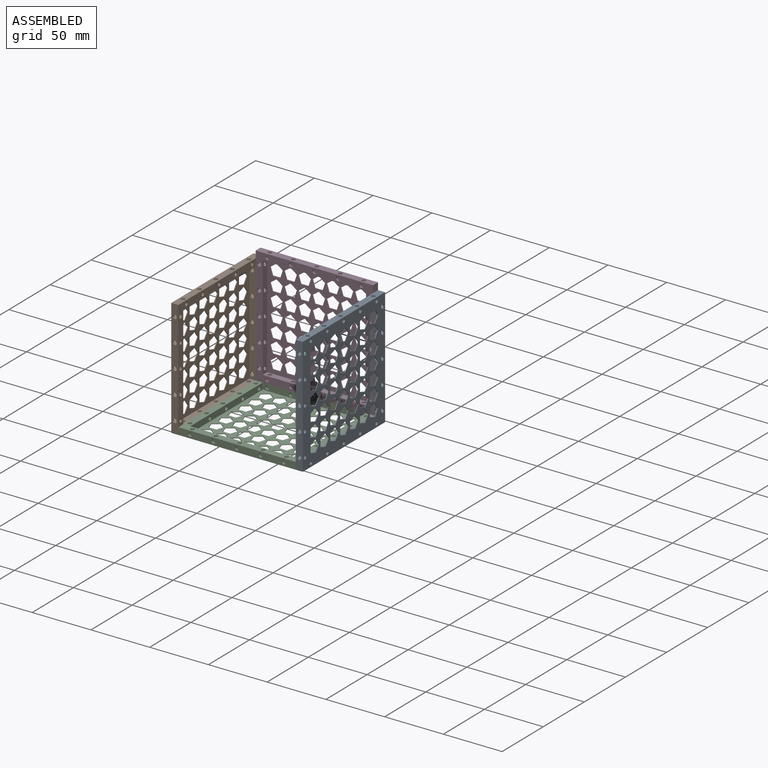
[diagram: assembled view]
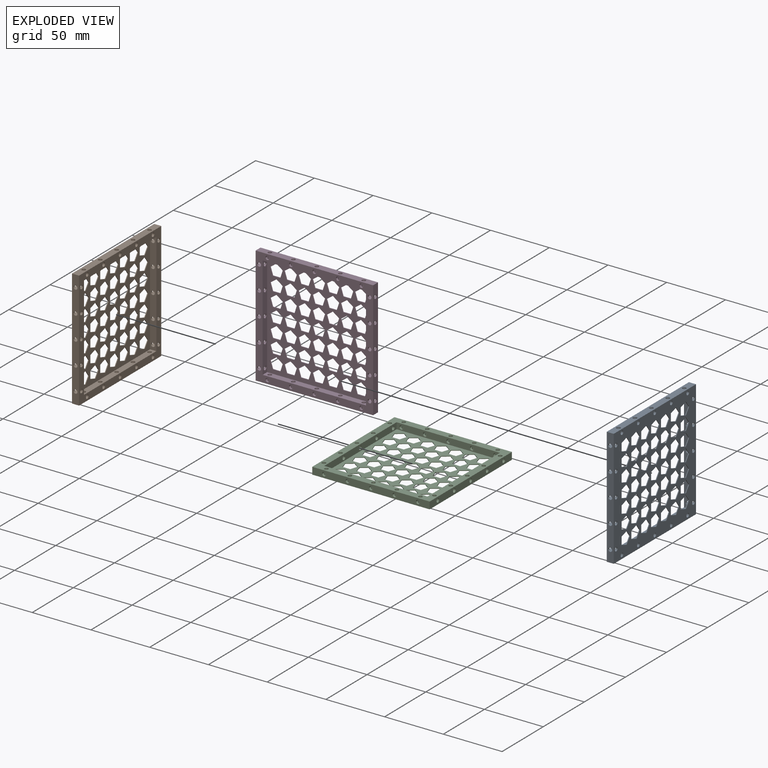
[diagram: exploded view]
GUIDED TOUR — MATED ASSEMBLY (Onshape document 7ba6213f974db87260cc7ae6, AutoMate assembly 7ba6213f974db87260cc7ae6_96b7c38a529a54918aa00f16_e0579a157c6d492ff08cebb7_default)

This assembly has 4 components, labeled P0..P3 below (a component is one placed occurrence of a part; the same part can appear more than once), held together by 3 mates. A mate is a constraint between two components; its type names the relative motion it leaves free:
  FASTENED — locks the two components together rigidly (no relative motion).
Axis/direction vectors are unit vectors and 'through' points are millimeter coordinates, both in the assembly's world frame.

MATES
  1. FASTENED "Fastened 3": P2 <-> P3, direction (0.000, 0.000, -1.000) through (-31.14, 40.50, 45.77) mm
  2. FASTENED "Fastened 2": P2 <-> P1, direction (-1.000, 0.000, 0.000) through (-81.14, 33.50, 42.77) mm
  3. FASTENED "Fastened 1": P2 <-> P0, direction (1.000, 0.000, 0.000) through (18.86, -46.50, 42.77) mm

ASSEMBLY ORDER
  1. P3 — the base component [order verified]
  2. P2 [order verified]
  3. P0 [order verified]
  4. P1 [order verified]
Order-tag legend:
  [order verified] — this step's position reverses a verified removal order: the component was checked to insert without passing through the ones already placed.

Of the 4 components, 4 carry the full construction recipe — the FeatureScript program that regenerates the part's solid from scratch; the rest are supplied as boundary geometry only.
Each toured component is shown spotlighted twice — in the assembled view, then in the exploded view, where a leader line traces a displaced component back to its assembled socket (saturated green if recipe-attached, orange if geometry-only; every other component desaturated gray) — followed by its recipe or geometry summary and the mates that hold it.
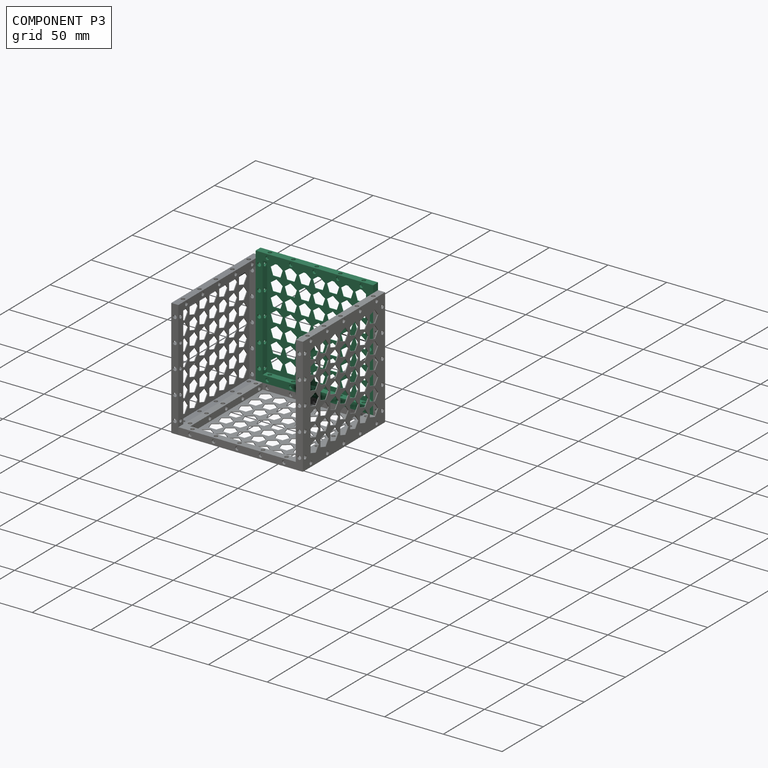
[diagram: component P3 — assembled]
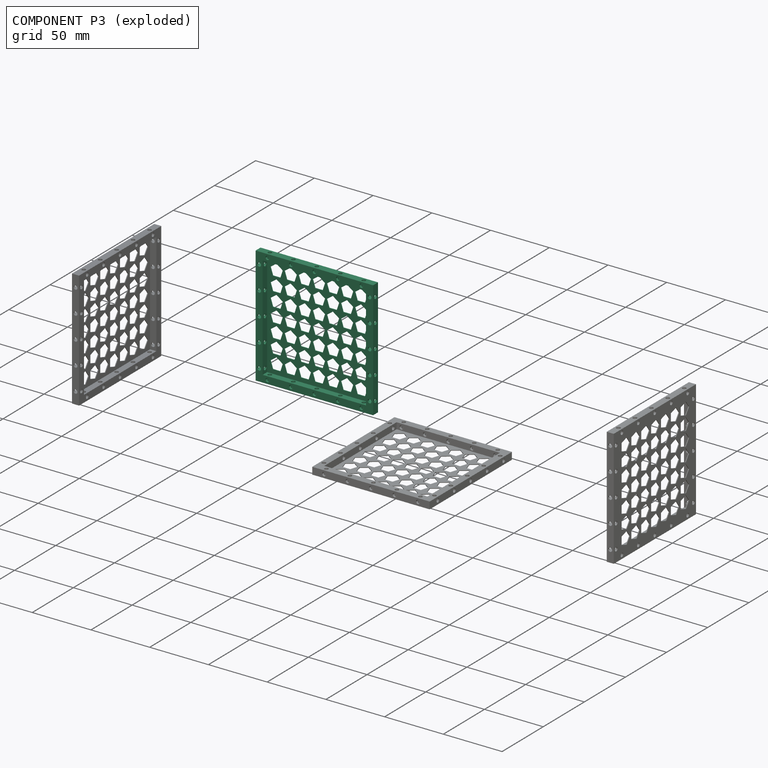
[diagram: component P3 — exploded]
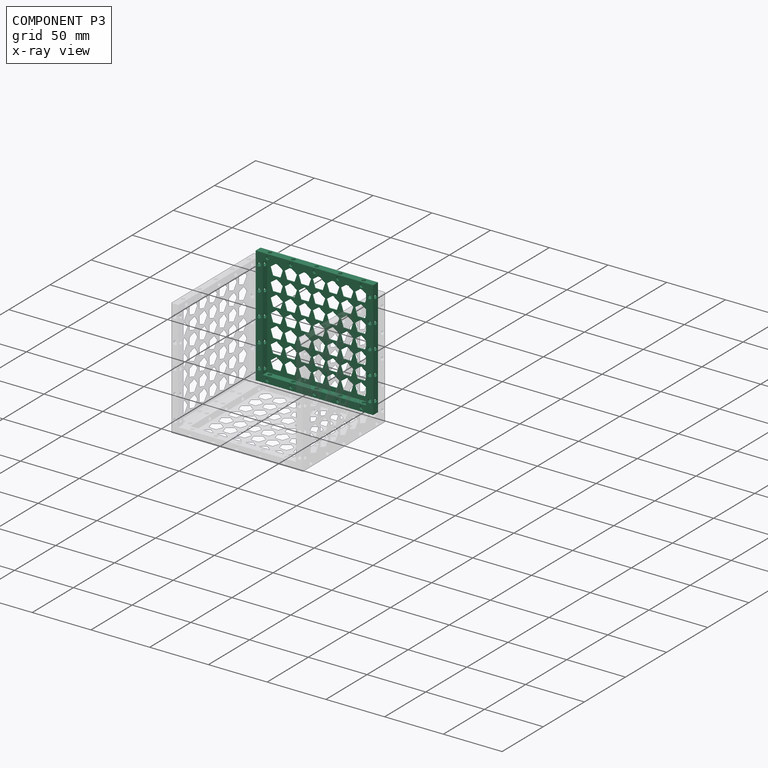
[diagram: component P3 — x-ray view]
COMPONENT P3 — same part as P0 (CADFS 00956520); its construction recipe is shown at P0.
Held by: FASTENED mate "Fastened 3" to P2.
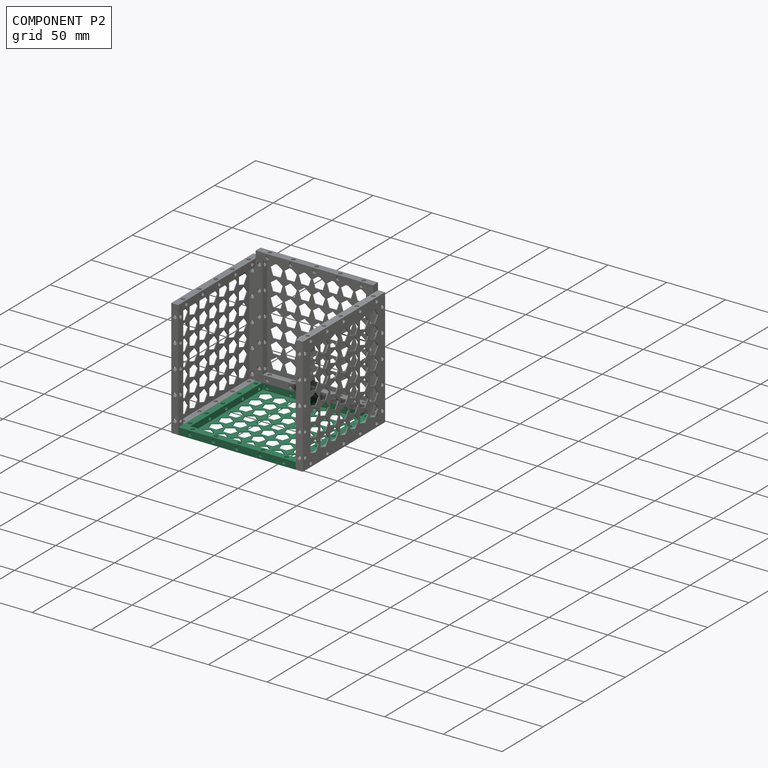
[diagram: component P2 — assembled]
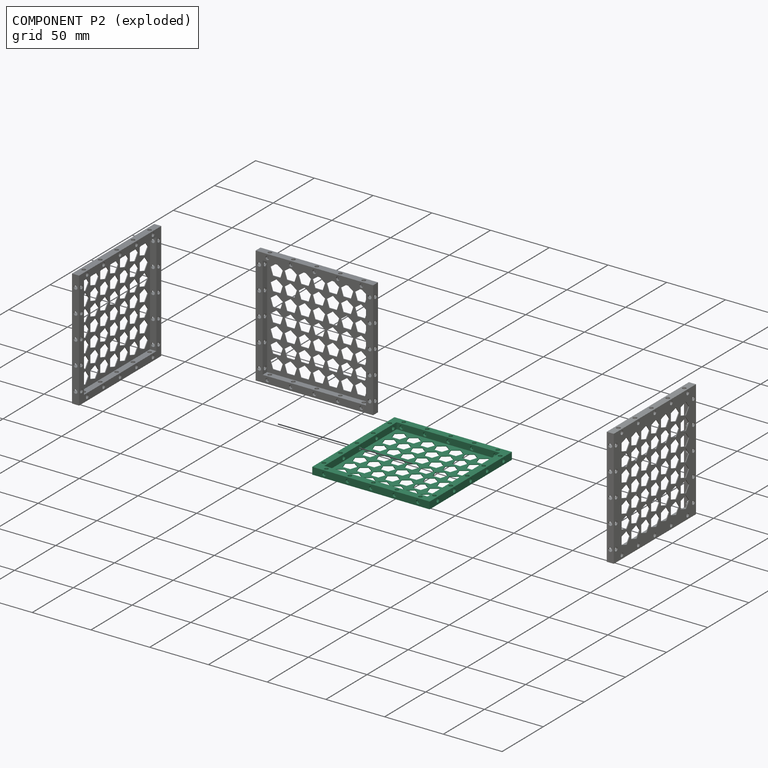
[diagram: component P2 — exploded]
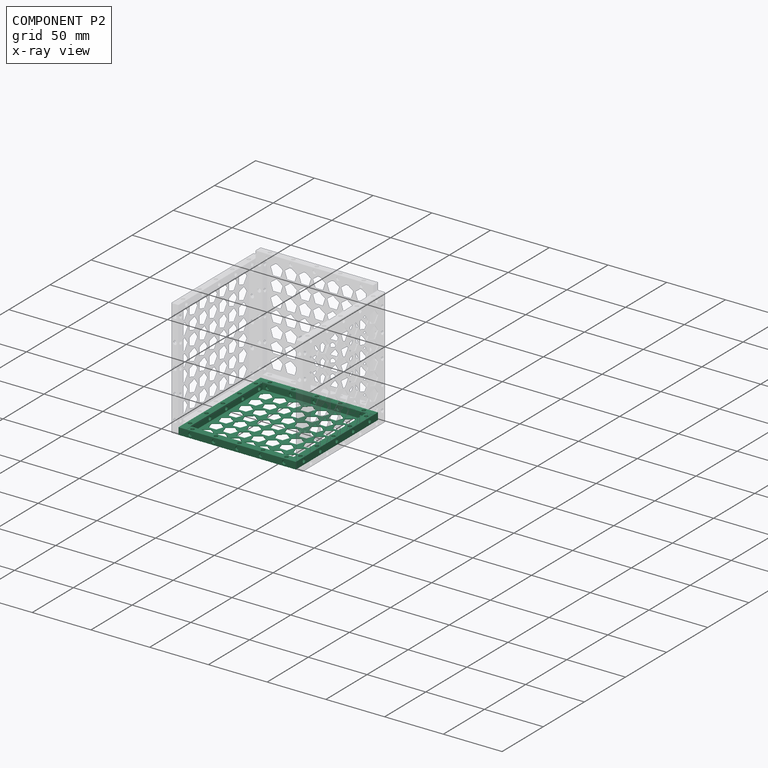
[diagram: component P2 — x-ray view]
COMPONENT P2 — same part as P0 (CADFS 00956520); its construction recipe is shown at P0.
Held by: FASTENED mate "Fastened 3" to P3; FASTENED mate "Fastened 2" to P1; FASTENED mate "Fastened 1" to P0.
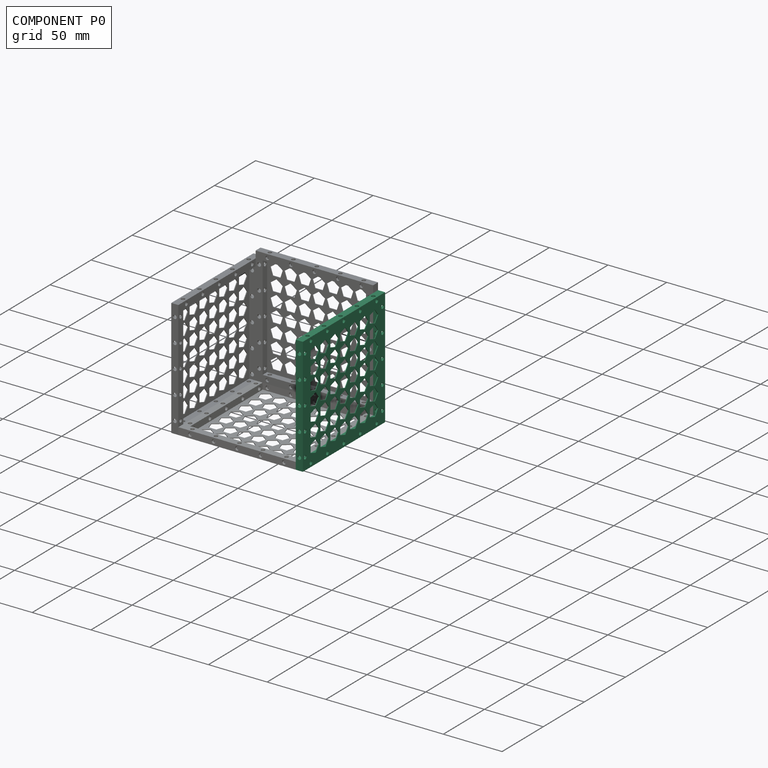
[diagram: component P0 — assembled]
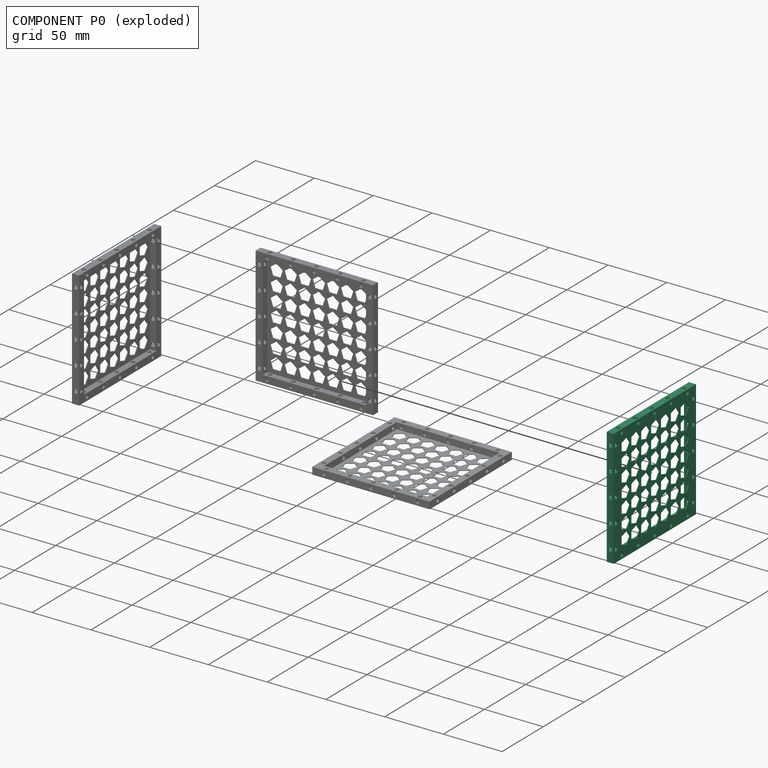
[diagram: component P0 — exploded]
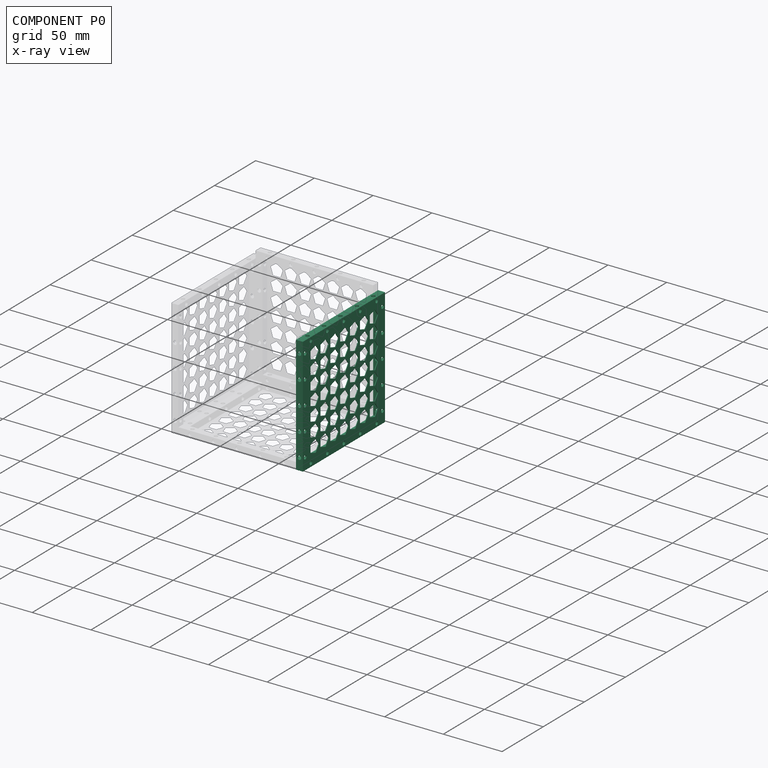
[diagram: component P0 — x-ray view]
COMPONENT P0 — recipe-attached (CADFS 00956520, mesh-verified: the recipe's output STEP matches this component's geometry to below the mesh-comparison resolution (tessellation chordal tolerance ~0.212 mm)).
Held by: FASTENED mate "Fastened 1" to P2.
Construction recipe (FeatureScript — the CAD program that rebuilds this solid; sketch coordinates are in the units given by the * unit suffixes, e.g. mm):

FeatureScript 1511;
import(path : "onshape/std/geometry.fs", version : "1511.0");
import(path : "onshape/std/common.fs", version : "1511.0");
const mm = millimeter;
const VERTEX = EntityType.VERTEX;
const EDGE = EntityType.EDGE;
const FACE = EntityType.FACE;
const BODY = EntityType.BODY;
function v(x, y){return vector(x, y);}
function OD(order){return orderDisambiguation(order);}
function OSD(set){return originalSetDisambiguation(set);}
function TD(topology){return topologyDisambiguation(topology);}
function TDD(query){return trueDependencyDisambiguation(query);}
function sQuery(a, b, c) {return sketchEntityQuery(a, b, c);}

annotation { "Feature Type Name" : "Feature", "Feature Type Description" : "" }
export const myFeature = defineFeature(function(context is Context, id is Id, definition is map)
    precondition{}
    {
        {
            var Q0;
            Q0=qCreatedBy(makeId("Top.planeOp"),FACE);
            var sketch = newSketch(context, id + "F0", { "sketchPlane" : qUnion([Q0])});
            skLineSegment(sketch, "E0.bottom", {"start": v(-50, 50) * mm, "end": v(50, 50) * mm});
            skLineSegment(sketch, "E0.top", {"start": v(-50, -50) * mm, "end": v(50, -50) * mm});
            skLineSegment(sketch, "E0.left", {"start": v(-50, 50) * mm, "end": v(-50, -50) * mm});
            skLineSegment(sketch, "E0.right", {"start": v(50, 50) * mm, "end": v(50, -50) * mm});
            skLineSegment(sketch, "E1", {"start": v(50, 50) * mm, "end": v(-50, -50) * mm, "construction": true});
            skLineSegment(sketch, "E2", {"start": v(-50, 50) * mm, "end": v(50, -50) * mm, "construction": true});
            skPoint(sketch, "E3", {"position": v(0, 0) * mm});
            skSolve(sketch);
        }
        {
            var Q0;
            Q0 = qSketchRegion(id + "F0", true);
            extrude(context, id + "F1", {"entities" : qUnion([Q0]), "depth" : .6 * mm, "offsetDistance" : 25 * mm});
        }
        {
            var Q0;
            Q0=qCreatedBy(makeId("Top.planeOp"),FACE);
            var sketch = newSketch(context, id + "F2", { "sketchPlane" : qUnion([Q0])});
            skLineSegment(sketch, "E4.bottom", {"start": v(-50, 50) * mm, "end": v(-44, 50) * mm});
            skLineSegment(sketch, "E4.top", {"start": v(-50, -50) * mm, "end": v(-44, -50) * mm});
            skLineSegment(sketch, "E4.left", {"start": v(-50, 50) * mm, "end": v(-50, -50) * mm});
            skLineSegment(sketch, "E4.right", {"start": v(-44, 50) * mm, "end": v(-44, -50) * mm});
            skLineSegment(sketch, "E5.MirrorCS", {"start": v(50, 50) * mm, "end": v(44, 50) * mm});
            skLineSegment(sketch, "E6.MirrorCS", {"start": v(50, -50) * mm, "end": v(44, -50) * mm});
            skLineSegment(sketch, "E7.MirrorCS", {"start": v(50, 50) * mm, "end": v(50, -50) * mm});
            skLineSegment(sketch, "E8.MirrorCS", {"start": v(44, 50) * mm, "end": v(44, -50) * mm});
            skLineSegment(sketch, "E9.bottom", {"start": v(-44, 50) * mm, "end": v(44, 50) * mm});
            skLineSegment(sketch, "E9.top", {"start": v(-44, 44) * mm, "end": v(44, 44) * mm});
            skLineSegment(sketch, "E9.left", {"start": v(-44, 50) * mm, "end": v(-44, 44) * mm});
            skLineSegment(sketch, "E9.right", {"start": v(44, 50) * mm, "end": v(44, 44) * mm});
            skLineSegment(sketch, "E10.MirrorCS", {"start": v(44, -50) * mm, "end": v(44, -44) * mm});
            skLineSegment(sketch, "E11.MirrorCS", {"start": v(-44, -50) * mm, "end": v(-44, -44) * mm});
            skLineSegment(sketch, "E12.MirrorCS", {"start": v(-44, -50) * mm, "end": v(44, -50) * mm});
            skLineSegment(sketch, "E13.MirrorCS", {"start": v(-44, -44) * mm, "end": v(44, -44) * mm});
            skSolve(sketch);
        }
        {
            var Q0;
            Q0 = qSketchRegion(id + "F2", true);
            extrude(context, id + "F3", {"entities" : qUnion([Q0]), "operationType" : NewBodyOperationType.ADD, "depth" : 6 * mm, "offsetDistance" : 25 * mm});
        }
        {
            var Q0;
            Q0=qCreatedBy(makeId("Top.planeOp"),FACE);
            var sketch = newSketch(context, id + "F4", { "sketchPlane" : qUnion([Q0])});
            skCircle(sketch, "E14.cCircle", {"center": v(-36, 36) * mm, "radius": 4.5 * mm, "construction": true});
            skLineSegment(sketch, "E14.0", {"start": v(-30.7, 37.72) * mm, "end": v(-32.73, 31.5) * mm});
            skLineSegment(sketch, "E14.1", {"start": v(-32.73, 31.5) * mm, "end": v(-39.27, 31.5) * mm});
            skLineSegment(sketch, "E14.2", {"start": v(-39.27, 31.5) * mm, "end": v(-41.3, 37.72) * mm});
            skLineSegment(sketch, "E14.3", {"start": v(-41.3, 37.72) * mm, "end": v(-36, 41.56) * mm});
            skLineSegment(sketch, "E14.4", {"start": v(-36, 41.56) * mm, "end": v(-30.7, 37.72) * mm});
            skPoint(sketch, "E14.0.midPoint", {"position": v(-31.72, 34.6) * mm});
            skLineSegment(sketch, "E15.0.1.0", {"start": v(-36, 29.56) * mm, "end": v(-30.7, 25.72) * mm});
            skLineSegment(sketch, "E15.0.1.1", {"start": v(-41.3, 25.72) * mm, "end": v(-36, 29.56) * mm});
            skPoint(sketch, "E15.0.1.2", {"position": v(-31.72, 22.6) * mm});
            skCircle(sketch, "E15.0.1.3", {"center": v(-36, 24) * mm, "radius": 4.5 * mm, "construction": true});
            skLineSegment(sketch, "E15.0.1.4", {"start": v(-30.7, 25.72) * mm, "end": v(-32.73, 19.5) * mm});
            skLineSegment(sketch, "E15.0.1.5", {"start": v(-32.73, 19.5) * mm, "end": v(-39.27, 19.5) * mm});
            skLineSegment(sketch, "E15.0.1.6", {"start": v(-39.27, 19.5) * mm, "end": v(-41.3, 25.72) * mm});
            skLineSegment(sketch, "E15.0.2.0", {"start": v(-36, 17.56) * mm, "end": v(-30.7, 13.72) * mm});
            skLineSegment(sketch, "E15.0.2.1", {"start": v(-41.3, 13.72) * mm, "end": v(-36, 17.56) * mm});
            skPoint(sketch, "E15.0.2.2", {"position": v(-31.72, 10.6) * mm});
            skCircle(sketch, "E15.0.2.3", {"center": v(-36, 12) * mm, "radius": 4.5 * mm, "construction": true});
            skLineSegment(sketch, "E15.0.2.4", {"start": v(-30.7, 13.72) * mm, "end": v(-32.73, 7.5) * mm});
            skLineSegment(sketch, "E15.0.2.5", {"start": v(-32.73, 7.5) * mm, "end": v(-39.27, 7.5) * mm});
            skLineSegment(sketch, "E15.0.2.6", {"start": v(-39.27, 7.5) * mm, "end": v(-41.3, 13.72) * mm});
            skLineSegment(sketch, "E15.0.3.0", {"start": v(-36, 5.56) * mm, "end": v(-30.7, 1.72) * mm});
            skLineSegment(sketch, "E15.0.3.1", {"start": v(-41.3, 1.72) * mm, "end": v(-36, 5.56) * mm});
            skPoint(sketch, "E15.0.3.2", {"position": v(-31.72, -1.4) * mm});
            skCircle(sketch, "E15.0.3.3", {"center": v(-36, 0) * mm, "radius": 4.5 * mm, "construction": true});
            skLineSegment(sketch, "E15.0.3.4", {"start": v(-30.7, 1.72) * mm, "end": v(-32.73, -4.5) * mm});
            skLineSegment(sketch, "E15.0.3.5", {"start": v(-32.73, -4.5) * mm, "end": v(-39.27, -4.5) * mm});
            skLineSegment(sketch, "E15.0.3.6", {"start": v(-39.27, -4.5) * mm, "end": v(-41.3, 1.72) * mm});
            skLineSegment(sketch, "E15.0.4.0", {"start": v(-36, -6.44) * mm, "end": v(-30.7, -10.28) * mm});
            skLineSegment(sketch, "E15.0.4.1", {"start": v(-41.3, -10.28) * mm, "end": v(-36, -6.44) * mm});
            skPoint(sketch, "E15.0.4.2", {"position": v(-31.72, -13.4) * mm});
            skCircle(sketch, "E15.0.4.3", {"center": v(-36, -12) * mm, "radius": 4.5 * mm, "construction": true});
            skLineSegment(sketch, "E15.0.4.4", {"start": v(-30.7, -10.28) * mm, "end": v(-32.73, -16.5) * mm});
            skLineSegment(sketch, "E15.0.4.5", {"start": v(-32.73, -16.5) * mm, "end": v(-39.27, -16.5) * mm});
            skLineSegment(sketch, "E15.0.4.6", {"start": v(-39.27, -16.5) * mm, "end": v(-41.3, -10.28) * mm});
            skLineSegment(sketch, "E15.0.5.0", {"start": v(-36, -18.44) * mm, "end": v(-30.7, -22.28) * mm});
            skLineSegment(sketch, "E15.0.5.1", {"start": v(-41.3, -22.28) * mm, "end": v(-36, -18.44) * mm});
            skPoint(sketch, "E15.0.5.2", {"position": v(-31.72, -25.4) * mm});
            skCircle(sketch, "E15.0.5.3", {"center": v(-36, -24) * mm, "radius": 4.5 * mm, "construction": true});
            skLineSegment(sketch, "E15.0.5.4", {"start": v(-30.7, -22.28) * mm, "end": v(-32.73, -28.5) * mm});
            skLineSegment(sketch, "E15.0.5.5", {"start": v(-32.73, -28.5) * mm, "end": v(-39.27, -28.5) * mm});
            skLineSegment(sketch, "E15.0.5.6", {"start": v(-39.27, -28.5) * mm, "end": v(-41.3, -22.28) * mm});
            skLineSegment(sketch, "E15.1.0.0", {"start": v(-24, 41.56) * mm, "end": v(-18.7, 37.72) * mm});
            skLineSegment(sketch, "E15.1.0.1", {"start": v(-29.3, 37.72) * mm, "end": v(-24, 41.56) * mm});
            skPoint(sketch, "E15.1.0.2", {"position": v(-19.72, 34.6) * mm});
            skCircle(sketch, "E15.1.0.3", {"center": v(-24, 36) * mm, "radius": 4.5 * mm, "construction": true});
            skLineSegment(sketch, "E15.1.0.4", {"start": v(-18.7, 37.72) * mm, "end": v(-20.73, 31.5) * mm});
            skLineSegment(sketch, "E15.1.0.5", {"start": v(-20.73, 31.5) * mm, "end": v(-27.27, 31.5) * mm});
            skLineSegment(sketch, "E15.1.0.6", {"start": v(-27.27, 31.5) * mm, "end": v(-29.3, 37.72) * mm});
            skLineSegment(sketch, "E15.1.1.0", {"start": v(-24, 29.56) * mm, "end": v(-18.7, 25.72) * mm});
            skLineSegment(sketch, "E15.1.1.1", {"start": v(-29.3, 25.72) * mm, "end": v(-24, 29.56) * mm});
            skPoint(sketch, "E15.1.1.2", {"position": v(-19.72, 22.6) * mm});
            skCircle(sketch, "E15.1.1.3", {"center": v(-24, 24) * mm, "radius": 4.5 * mm, "construction": true});
            skLineSegment(sketch, "E15.1.1.4", {"start": v(-18.7, 25.72) * mm, "end": v(-20.73, 19.5) * mm});
            skLineSegment(sketch, "E15.1.1.5", {"start": v(-20.73, 19.5) * mm, "end": v(-27.27, 19.5) * mm});
            skLineSegment(sketch, "E15.1.1.6", {"start": v(-27.27, 19.5) * mm, "end": v(-29.3, 25.72) * mm});
            skLineSegment(sketch, "E15.1.2.0", {"start": v(-24, 17.56) * mm, "end": v(-18.7, 13.72) * mm});
            skLineSegment(sketch, "E15.1.2.1", {"start": v(-29.3, 13.72) * mm, "end": v(-24, 17.56) * mm});
            skPoint(sketch, "E15.1.2.2", {"position": v(-19.72, 10.6) * mm});
            skCircle(sketch, "E15.1.2.3", {"center": v(-24, 12) * mm, "radius": 4.5 * mm, "construction": true});
            skLineSegment(sketch, "E15.1.2.4", {"start": v(-18.7, 13.72) * mm, "end": v(-20.73, 7.5) * mm});
            skLineSegment(sketch, "E15.1.2.5", {"start": v(-20.73, 7.5) * mm, "end": v(-27.27, 7.5) * mm});
            skLineSegment(sketch, "E15.1.2.6", {"start": v(-27.27, 7.5) * mm, "end": v(-29.3, 13.72) * mm});
            skLineSegment(sketch, "E15.1.3.0", {"start": v(-24, 5.56) * mm, "end": v(-18.7, 1.72) * mm});
            skLineSegment(sketch, "E15.1.3.1", {"start": v(-29.3, 1.72) * mm, "end": v(-24, 5.56) * mm});
            skPoint(sketch, "E15.1.3.2", {"position": v(-19.72, -1.4) * mm});
            skCircle(sketch, "E15.1.3.3", {"center": v(-24, 0) * mm, "radius": 4.5 * mm, "construction": true});
            skLineSegment(sketch, "E15.1.3.4", {"start": v(-18.7, 1.72) * mm, "end": v(-20.73, -4.5) * mm});
            skLineSegment(sketch, "E15.1.3.5", {"start": v(-20.73, -4.5) * mm, "end": v(-27.27, -4.5) * mm});
            skLineSegment(sketch, "E15.1.3.6", {"start": v(-27.27, -4.5) * mm, "end": v(-29.3, 1.72) * mm});
            skLineSegment(sketch, "E15.1.4.0", {"start": v(-24, -6.44) * mm, "end": v(-18.7, -10.28) * mm});
            skLineSegment(sketch, "E15.1.4.1", {"start": v(-29.3, -10.28) * mm, "end": v(-24, -6.44) * mm});
            skPoint(sketch, "E15.1.4.2", {"position": v(-19.72, -13.4) * mm});
            skCircle(sketch, "E15.1.4.3", {"center": v(-24, -12) * mm, "radius": 4.5 * mm, "construction": true});
            skLineSegment(sketch, "E15.1.4.4", {"start": v(-18.7, -10.28) * mm, "end": v(-20.73, -16.5) * mm});
            skLineSegment(sketch, "E15.1.4.5", {"start": v(-20.73, -16.5) * mm, "end": v(-27.27, -16.5) * mm});
            skLineSegment(sketch, "E15.1.4.6", {"start": v(-27.27, -16.5) * mm, "end": v(-29.3, -10.28) * mm});
            skLineSegment(sketch, "E15.1.5.0", {"start": v(-24, -18.44) * mm, "end": v(-18.7, -22.28) * mm});
            skLineSegment(sketch, "E15.1.5.1", {"start": v(-29.3, -22.28) * mm, "end": v(-24, -18.44) * mm});
            skPoint(sketch, "E15.1.5.2", {"position": v(-19.72, -25.4) * mm});
            skCircle(sketch, "E15.1.5.3", {"center": v(-24, -24) * mm, "radius": 4.5 * mm, "construction": true});
            skLineSegment(sketch, "E15.1.5.4", {"start": v(-18.7, -22.28) * mm, "end": v(-20.73, -28.5) * mm});
            skLineSegment(sketch, "E15.1.5.5", {"start": v(-20.73, -28.5) * mm, "end": v(-27.27, -28.5) * mm});
            skLineSegment(sketch, "E15.1.5.6", {"start": v(-27.27, -28.5) * mm, "end": v(-29.3, -22.28) * mm});
            skLineSegment(sketch, "E15.2.0.0", {"start": v(-12, 41.56) * mm, "end": v(-6.7, 37.72) * mm});
            skLineSegment(sketch, "E15.2.0.1", {"start": v(-17.3, 37.72) * mm, "end": v(-12, 41.56) * mm});
            skPoint(sketch, "E15.2.0.2", {"position": v(-7.72, 34.6) * mm});
            skCircle(sketch, "E15.2.0.3", {"center": v(-12, 36) * mm, "radius": 4.5 * mm, "construction": true});
            skLineSegment(sketch, "E15.2.0.4", {"start": v(-6.7, 37.72) * mm, "end": v(-8.73, 31.5) * mm});
            skLineSegment(sketch, "E15.2.0.5", {"start": v(-8.73, 31.5) * mm, "end": v(-15.27, 31.5) * mm});
            skLineSegment(sketch, "E15.2.0.6", {"start": v(-15.27, 31.5) * mm, "end": v(-17.3, 37.72) * mm});
            skLineSegment(sketch, "E15.2.1.0", {"start": v(-12, 29.56) * mm, "end": v(-6.7, 25.72) * mm});
            skLineSegment(sketch, "E15.2.1.1", {"start": v(-17.3, 25.72) * mm, "end": v(-12, 29.56) * mm});
            skPoint(sketch, "E15.2.1.2", {"position": v(-7.72, 22.6) * mm});
            skCircle(sketch, "E15.2.1.3", {"center": v(-12, 24) * mm, "radius": 4.5 * mm, "construction": true});
            skLineSegment(sketch, "E15.2.1.4", {"start": v(-6.7, 25.72) * mm, "end": v(-8.73, 19.5) * mm});
            skLineSegment(sketch, "E15.2.1.5", {"start": v(-8.73, 19.5) * mm, "end": v(-15.27, 19.5) * mm});
            skLineSegment(sketch, "E15.2.1.6", {"start": v(-15.27, 19.5) * mm, "end": v(-17.3, 25.72) * mm});
            skLineSegment(sketch, "E15.2.2.0", {"start": v(-12, 17.56) * mm, "end": v(-6.7, 13.72) * mm});
            skLineSegment(sketch, "E15.2.2.1", {"start": v(-17.3, 13.72) * mm, "end": v(-12, 17.56) * mm});
            skPoint(sketch, "E15.2.2.2", {"position": v(-7.72, 10.6) * mm});
            skCircle(sketch, "E15.2.2.3", {"center": v(-12, 12) * mm, "radius": 4.5 * mm, "construction": true});
            skLineSegment(sketch, "E15.2.2.4", {"start": v(-6.7, 13.72) * mm, "end": v(-8.73, 7.5) * mm});
            skLineSegment(sketch, "E15.2.2.5", {"start": v(-8.73, 7.5) * mm, "end": v(-15.27, 7.5) * mm});
            skLineSegment(sketch, "E15.2.2.6", {"start": v(-15.27, 7.5) * mm, "end": v(-17.3, 13.72) * mm});
            skLineSegment(sketch, "E15.2.3.0", {"start": v(-12, 5.56) * mm, "end": v(-6.7, 1.72) * mm});
            skLineSegment(sketch, "E15.2.3.1", {"start": v(-17.3, 1.72) * mm, "end": v(-12, 5.56) * mm});
            skPoint(sketch, "E15.2.3.2", {"position": v(-7.72, -1.4) * mm});
            skCircle(sketch, "E15.2.3.3", {"center": v(-12, 0) * mm, "radius": 4.5 * mm, "construction": true});
            skLineSegment(sketch, "E15.2.3.4", {"start": v(-6.7, 1.72) * mm, "end": v(-8.73, -4.5) * mm});
            skLineSegment(sketch, "E15.2.3.5", {"start": v(-8.73, -4.5) * mm, "end": v(-15.27, -4.5) * mm});
            skLineSegment(sketch, "E15.2.3.6", {"start": v(-15.27, -4.5) * mm, "end": v(-17.3, 1.72) * mm});
            skLineSegment(sketch, "E15.2.4.0", {"start": v(-12, -6.44) * mm, "end": v(-6.7, -10.28) * mm});
            skLineSegment(sketch, "E15.2.4.1", {"start": v(-17.3, -10.28) * mm, "end": v(-12, -6.44) * mm});
            skPoint(sketch, "E15.2.4.2", {"position": v(-7.72, -13.4) * mm});
            skCircle(sketch, "E15.2.4.3", {"center": v(-12, -12) * mm, "radius": 4.5 * mm, "construction": true});
            skLineSegment(sketch, "E15.2.4.4", {"start": v(-6.7, -10.28) * mm, "end": v(-8.73, -16.5) * mm});
            skLineSegment(sketch, "E15.2.4.5", {"start": v(-8.73, -16.5) * mm, "end": v(-15.27, -16.5) * mm});
            skLineSegment(sketch, "E15.2.4.6", {"start": v(-15.27, -16.5) * mm, "end": v(-17.3, -10.28) * mm});
            skLineSegment(sketch, "E15.2.5.0", {"start": v(-12, -18.44) * mm, "end": v(-6.7, -22.28) * mm});
            skLineSegment(sketch, "E15.2.5.1", {"start": v(-17.3, -22.28) * mm, "end": v(-12, -18.44) * mm});
            skPoint(sketch, "E15.2.5.2", {"position": v(-7.72, -25.4) * mm});
            skCircle(sketch, "E15.2.5.3", {"center": v(-12, -24) * mm, "radius": 4.5 * mm, "construction": true});
            skLineSegment(sketch, "E15.2.5.4", {"start": v(-6.7, -22.28) * mm, "end": v(-8.73, -28.5) * mm});
            skLineSegment(sketch, "E15.2.5.5", {"start": v(-8.73, -28.5) * mm, "end": v(-15.27, -28.5) * mm});
            skLineSegment(sketch, "E15.2.5.6", {"start": v(-15.27, -28.5) * mm, "end": v(-17.3, -22.28) * mm});
            skLineSegment(sketch, "E15.3.0.0", {"start": v(0, 41.56) * mm, "end": v(5.3, 37.72) * mm});
            skLineSegment(sketch, "E15.3.0.1", {"start": v(-5.3, 37.72) * mm, "end": v(0, 41.56) * mm});
            skPoint(sketch, "E15.3.0.2", {"position": v(4.28, 34.6) * mm});
            skCircle(sketch, "E15.3.0.3", {"center": v(0, 36) * mm, "radius": 4.5 * mm, "construction": true});
            skLineSegment(sketch, "E15.3.0.4", {"start": v(5.3, 37.72) * mm, "end": v(3.27, 31.5) * mm});
            skLineSegment(sketch, "E15.3.0.5", {"start": v(3.27, 31.5) * mm, "end": v(-3.27, 31.5) * mm});
            skLineSegment(sketch, "E15.3.0.6", {"start": v(-3.27, 31.5) * mm, "end": v(-5.3, 37.72) * mm});
            skLineSegment(sketch, "E15.3.1.0", {"start": v(0, 29.56) * mm, "end": v(5.3, 25.72) * mm});
            skLineSegment(sketch, "E15.3.1.1", {"start": v(-5.3, 25.72) * mm, "end": v(0, 29.56) * mm});
            skPoint(sketch, "E15.3.1.2", {"position": v(4.28, 22.6) * mm});
            skCircle(sketch, "E15.3.1.3", {"center": v(0, 24) * mm, "radius": 4.5 * mm, "construction": true});
            skLineSegment(sketch, "E15.3.1.4", {"start": v(5.3, 25.72) * mm, "end": v(3.27, 19.5) * mm});
            skLineSegment(sketch, "E15.3.1.5", {"start": v(3.27, 19.5) * mm, "end": v(-3.27, 19.5) * mm});
            skLineSegment(sketch, "E15.3.1.6", {"start": v(-3.27, 19.5) * mm, "end": v(-5.3, 25.72) * mm});
            skLineSegment(sketch, "E15.3.2.0", {"start": v(0, 17.56) * mm, "end": v(5.3, 13.72) * mm});
            skLineSegment(sketch, "E15.3.2.1", {"start": v(-5.3, 13.72) * mm, "end": v(0, 17.56) * mm});
            skPoint(sketch, "E15.3.2.2", {"position": v(4.28, 10.6) * mm});
            skCircle(sketch, "E15.3.2.3", {"center": v(0, 12) * mm, "radius": 4.5 * mm, "construction": true});
            skLineSegment(sketch, "E15.3.2.4", {"start": v(5.3, 13.72) * mm, "end": v(3.27, 7.5) * mm});
            skLineSegment(sketch, "E15.3.2.5", {"start": v(3.27, 7.5) * mm, "end": v(-3.27, 7.5) * mm});
            skLineSegment(sketch, "E15.3.2.6", {"start": v(-3.27, 7.5) * mm, "end": v(-5.3, 13.72) * mm});
            skLineSegment(sketch, "E15.3.3.0", {"start": v(0, 5.56) * mm, "end": v(5.3, 1.72) * mm});
            skLineSegment(sketch, "E15.3.3.1", {"start": v(-5.3, 1.72) * mm, "end": v(0, 5.56) * mm});
            skPoint(sketch, "E15.3.3.2", {"position": v(4.28, -1.4) * mm});
            skCircle(sketch, "E15.3.3.3", {"center": v(0, 0) * mm, "radius": 4.5 * mm, "construction": true});
            skLineSegment(sketch, "E15.3.3.4", {"start": v(5.3, 1.72) * mm, "end": v(3.27, -4.5) * mm});
            skLineSegment(sketch, "E15.3.3.5", {"start": v(3.27, -4.5) * mm, "end": v(-3.27, -4.5) * mm});
            skLineSegment(sketch, "E15.3.3.6", {"start": v(-3.27, -4.5) * mm, "end": v(-5.3, 1.72) * mm});
            skLineSegment(sketch, "E15.3.4.0", {"start": v(0, -6.44) * mm, "end": v(5.3, -10.28) * mm});
            skLineSegment(sketch, "E15.3.4.1", {"start": v(-5.3, -10.28) * mm, "end": v(0, -6.44) * mm});
            skPoint(sketch, "E15.3.4.2", {"position": v(4.28, -13.4) * mm});
            skCircle(sketch, "E15.3.4.3", {"center": v(0, -12) * mm, "radius": 4.5 * mm, "construction": true});
            skLineSegment(sketch, "E15.3.4.4", {"start": v(5.3, -10.28) * mm, "end": v(3.27, -16.5) * mm});
            skLineSegment(sketch, "E15.3.4.5", {"start": v(3.27, -16.5) * mm, "end": v(-3.27, -16.5) * mm});
            skLineSegment(sketch, "E15.3.4.6", {"start": v(-3.27, -16.5) * mm, "end": v(-5.3, -10.28) * mm});
            skLineSegment(sketch, "E15.3.5.0", {"start": v(0, -18.44) * mm, "end": v(5.3, -22.28) * mm});
            skLineSegment(sketch, "E15.3.5.1", {"start": v(-5.3, -22.28) * mm, "end": v(0, -18.44) * mm});
            skPoint(sketch, "E15.3.5.2", {"position": v(4.28, -25.4) * mm});
            skCircle(sketch, "E15.3.5.3", {"center": v(0, -24) * mm, "radius": 4.5 * mm, "construction": true});
            skLineSegment(sketch, "E15.3.5.4", {"start": v(5.3, -22.28) * mm, "end": v(3.27, -28.5) * mm});
            skLineSegment(sketch, "E15.3.5.5", {"start": v(3.27, -28.5) * mm, "end": v(-3.27, -28.5) * mm});
            skLineSegment(sketch, "E15.3.5.6", {"start": v(-3.27, -28.5) * mm, "end": v(-5.3, -22.28) * mm});
            skLineSegment(sketch, "E15.4.0.0", {"start": v(12, 41.56) * mm, "end": v(17.3, 37.72) * mm});
            skLineSegment(sketch, "E15.4.0.1", {"start": v(6.7, 37.72) * mm, "end": v(12, 41.56) * mm});
            skPoint(sketch, "E15.4.0.2", {"position": v(16.28, 34.6) * mm});
            skCircle(sketch, "E15.4.0.3", {"center": v(12, 36) * mm, "radius": 4.5 * mm, "construction": true});
            skLineSegment(sketch, "E15.4.0.4", {"start": v(17.3, 37.72) * mm, "end": v(15.27, 31.5) * mm});
            skLineSegment(sketch, "E15.4.0.5", {"start": v(15.27, 31.5) * mm, "end": v(8.73, 31.5) * mm});
            skLineSegment(sketch, "E15.4.0.6", {"start": v(8.73, 31.5) * mm, "end": v(6.7, 37.72) * mm});
            skLineSegment(sketch, "E15.4.1.0", {"start": v(12, 29.56) * mm, "end": v(17.3, 25.72) * mm});
            skLineSegment(sketch, "E15.4.1.1", {"start": v(6.7, 25.72) * mm, "end": v(12, 29.56) * mm});
            skPoint(sketch, "E15.4.1.2", {"position": v(16.28, 22.6) * mm});
            skCircle(sketch, "E15.4.1.3", {"center": v(12, 24) * mm, "radius": 4.5 * mm, "construction": true});
            skLineSegment(sketch, "E15.4.1.4", {"start": v(17.3, 25.72) * mm, "end": v(15.27, 19.5) * mm});
            skLineSegment(sketch, "E15.4.1.5", {"start": v(15.27, 19.5) * mm, "end": v(8.73, 19.5) * mm});
            skLineSegment(sketch, "E15.4.1.6", {"start": v(8.73, 19.5) * mm, "end": v(6.7, 25.72) * mm});
            skLineSegment(sketch, "E15.4.2.0", {"start": v(12, 17.56) * mm, "end": v(17.3, 13.72) * mm});
            skLineSegment(sketch, "E15.4.2.1", {"start": v(6.7, 13.72) * mm, "end": v(12, 17.56) * mm});
            skPoint(sketch, "E15.4.2.2", {"position": v(16.28, 10.6) * mm});
            skCircle(sketch, "E15.4.2.3", {"center": v(12, 12) * mm, "radius": 4.5 * mm, "construction": true});
            skLineSegment(sketch, "E15.4.2.4", {"start": v(17.3, 13.72) * mm, "end": v(15.27, 7.5) * mm});
            skLineSegment(sketch, "E15.4.2.5", {"start": v(15.27, 7.5) * mm, "end": v(8.73, 7.5) * mm});
            skLineSegment(sketch, "E15.4.2.6", {"start": v(8.73, 7.5) * mm, "end": v(6.7, 13.72) * mm});
            skLineSegment(sketch, "E15.4.3.0", {"start": v(12, 5.56) * mm, "end": v(17.3, 1.72) * mm});
            skLineSegment(sketch, "E15.4.3.1", {"start": v(6.7, 1.72) * mm, "end": v(12, 5.56) * mm});
            skPoint(sketch, "E15.4.3.2", {"position": v(16.28, -1.4) * mm});
            skCircle(sketch, "E15.4.3.3", {"center": v(12, 0) * mm, "radius": 4.5 * mm, "construction": true});
            skLineSegment(sketch, "E15.4.3.4", {"start": v(17.3, 1.72) * mm, "end": v(15.27, -4.5) * mm});
            skLineSegment(sketch, "E15.4.3.5", {"start": v(15.27, -4.5) * mm, "end": v(8.73, -4.5) * mm});
            skLineSegment(sketch, "E15.4.3.6", {"start": v(8.73, -4.5) * mm, "end": v(6.7, 1.72) * mm});
            skLineSegment(sketch, "E15.4.4.0", {"start": v(12, -6.44) * mm, "end": v(17.3, -10.28) * mm});
            skLineSegment(sketch, "E15.4.4.1", {"start": v(6.7, -10.28) * mm, "end": v(12, -6.44) * mm});
            skPoint(sketch, "E15.4.4.2", {"position": v(16.28, -13.4) * mm});
            skCircle(sketch, "E15.4.4.3", {"center": v(12, -12) * mm, "radius": 4.5 * mm, "construction": true});
            skLineSegment(sketch, "E15.4.4.4", {"start": v(17.3, -10.28) * mm, "end": v(15.27, -16.5) * mm});
            skLineSegment(sketch, "E15.4.4.5", {"start": v(15.27, -16.5) * mm, "end": v(8.73, -16.5) * mm});
            skLineSegment(sketch, "E15.4.4.6", {"start": v(8.73, -16.5) * mm, "end": v(6.7, -10.28) * mm});
            skLineSegment(sketch, "E15.4.5.0", {"start": v(12, -18.44) * mm, "end": v(17.3, -22.28) * mm});
            skLineSegment(sketch, "E15.4.5.1", {"start": v(6.7, -22.28) * mm, "end": v(12, -18.44) * mm});
            skPoint(sketch, "E15.4.5.2", {"position": v(16.28, -25.4) * mm});
            skCircle(sketch, "E15.4.5.3", {"center": v(12, -24) * mm, "radius": 4.5 * mm, "construction": true});
            skLineSegment(sketch, "E15.4.5.4", {"start": v(17.3, -22.28) * mm, "end": v(15.27, -28.5) * mm});
            skLineSegment(sketch, "E15.4.5.5", {"start": v(15.27, -28.5) * mm, "end": v(8.73, -28.5) * mm});
            skLineSegment(sketch, "E15.4.5.6", {"start": v(8.73, -28.5) * mm, "end": v(6.7, -22.28) * mm});
            skLineSegment(sketch, "E15.5.0.0", {"start": v(24, 41.56) * mm, "end": v(29.3, 37.72) * mm});
            skLineSegment(sketch, "E15.5.0.1", {"start": v(18.7, 37.72) * mm, "end": v(24, 41.56) * mm});
            skPoint(sketch, "E15.5.0.2", {"position": v(28.28, 34.6) * mm});
            skCircle(sketch, "E15.5.0.3", {"center": v(24, 36) * mm, "radius": 4.5 * mm, "construction": true});
            skLineSegment(sketch, "E15.5.0.4", {"start": v(29.3, 37.72) * mm, "end": v(27.27, 31.5) * mm});
            skLineSegment(sketch, "E15.5.0.5", {"start": v(27.27, 31.5) * mm, "end": v(20.73, 31.5) * mm});
            skLineSegment(sketch, "E15.5.0.6", {"start": v(20.73, 31.5) * mm, "end": v(18.7, 37.72) * mm});
            skLineSegment(sketch, "E15.5.1.0", {"start": v(24, 29.56) * mm, "end": v(29.3, 25.72) * mm});
            skLineSegment(sketch, "E15.5.1.1", {"start": v(18.7, 25.72) * mm, "end": v(24, 29.56) * mm});
            skPoint(sketch, "E15.5.1.2", {"position": v(28.28, 22.6) * mm});
            skCircle(sketch, "E15.5.1.3", {"center": v(24, 24) * mm, "radius": 4.5 * mm, "construction": true});
            skLineSegment(sketch, "E15.5.1.4", {"start": v(29.3, 25.72) * mm, "end": v(27.27, 19.5) * mm});
            skLineSegment(sketch, "E15.5.1.5", {"start": v(27.27, 19.5) * mm, "end": v(20.73, 19.5) * mm});
            skLineSegment(sketch, "E15.5.1.6", {"start": v(20.73, 19.5) * mm, "end": v(18.7, 25.72) * mm});
            skLineSegment(sketch, "E15.5.2.0", {"start": v(24, 17.56) * mm, "end": v(29.3, 13.72) * mm});
            skLineSegment(sketch, "E15.5.2.1", {"start": v(18.7, 13.72) * mm, "end": v(24, 17.56) * mm});
            skPoint(sketch, "E15.5.2.2", {"position": v(28.28, 10.6) * mm});
            skCircle(sketch, "E15.5.2.3", {"center": v(24, 12) * mm, "radius": 4.5 * mm, "construction": true});
            skLineSegment(sketch, "E15.5.2.4", {"start": v(29.3, 13.72) * mm, "end": v(27.27, 7.5) * mm});
            skLineSegment(sketch, "E15.5.2.5", {"start": v(27.27, 7.5) * mm, "end": v(20.73, 7.5) * mm});
            skLineSegment(sketch, "E15.5.2.6", {"start": v(20.73, 7.5) * mm, "end": v(18.7, 13.72) * mm});
            skLineSegment(sketch, "E15.5.3.0", {"start": v(24, 5.56) * mm, "end": v(29.3, 1.72) * mm});
            skLineSegment(sketch, "E15.5.3.1", {"start": v(18.7, 1.72) * mm, "end": v(24, 5.56) * mm});
            skPoint(sketch, "E15.5.3.2", {"position": v(28.28, -1.4) * mm});
            skCircle(sketch, "E15.5.3.3", {"center": v(24, 0) * mm, "radius": 4.5 * mm, "construction": true});
            skLineSegment(sketch, "E15.5.3.4", {"start": v(29.3, 1.72) * mm, "end": v(27.27, -4.5) * mm});
            skLineSegment(sketch, "E15.5.3.5", {"start": v(27.27, -4.5) * mm, "end": v(20.73, -4.5) * mm});
            skLineSegment(sketch, "E15.5.3.6", {"start": v(20.73, -4.5) * mm, "end": v(18.7, 1.72) * mm});
            skLineSegment(sketch, "E15.5.4.0", {"start": v(24, -6.44) * mm, "end": v(29.3, -10.28) * mm});
            skLineSegment(sketch, "E15.5.4.1", {"start": v(18.7, -10.28) * mm, "end": v(24, -6.44) * mm});
            skPoint(sketch, "E15.5.4.2", {"position": v(28.28, -13.4) * mm});
            skCircle(sketch, "E15.5.4.3", {"center": v(24, -12) * mm, "radius": 4.5 * mm, "construction": true});
            skLineSegment(sketch, "E15.5.4.4", {"start": v(29.3, -10.28) * mm, "end": v(27.27, -16.5) * mm});
            skLineSegment(sketch, "E15.5.4.5", {"start": v(27.27, -16.5) * mm, "end": v(20.73, -16.5) * mm});
            skLineSegment(sketch, "E15.5.4.6", {"start": v(20.73, -16.5) * mm, "end": v(18.7, -10.28) * mm});
            skLineSegment(sketch, "E15.5.5.0", {"start": v(24, -18.44) * mm, "end": v(29.3, -22.28) * mm});
            skLineSegment(sketch, "E15.5.5.1", {"start": v(18.7, -22.28) * mm, "end": v(24, -18.44) * mm});
            skPoint(sketch, "E15.5.5.2", {"position": v(28.28, -25.4) * mm});
            skCircle(sketch, "E15.5.5.3", {"center": v(24, -24) * mm, "radius": 4.5 * mm, "construction": true});
            skLineSegment(sketch, "E15.5.5.4", {"start": v(29.3, -22.28) * mm, "end": v(27.27, -28.5) * mm});
            skLineSegment(sketch, "E15.5.5.5", {"start": v(27.27, -28.5) * mm, "end": v(20.73, -28.5) * mm});
            skLineSegment(sketch, "E15.5.5.6", {"start": v(20.73, -28.5) * mm, "end": v(18.7, -22.28) * mm});
            skLineSegment(sketch, "E15.direction1", {"start": v(-39.27, 31.5) * mm, "end": v(-27.27, 31.5) * mm, "construction": true});
            skLineSegment(sketch, "E15.direction2", {"start": v(-39.27, 31.5) * mm, "end": v(-39.27, 19.5) * mm, "construction": true});
            skLineSegment(sketch, "E16.0.6.0", {"start": v(36, 41.56) * mm, "end": v(41.3, 37.72) * mm});
            skLineSegment(sketch, "E16.3.6.0", {"start": v(30.7, 37.72) * mm, "end": v(36, 41.56) * mm});
            skPoint(sketch, "E16.6.6.0", {"position": v(40.28, 34.6) * mm});
            skCircle(sketch, "E16.7.6.0", {"center": v(36, 36) * mm, "radius": 4.5 * mm, "construction": true});
            skLineSegment(sketch, "E16.9.6.0", {"start": v(41.3, 37.72) * mm, "end": v(39.27, 31.5) * mm});
            skLineSegment(sketch, "E16.12.6.0", {"start": v(39.27, 31.5) * mm, "end": v(32.73, 31.5) * mm});
            skLineSegment(sketch, "E16.15.6.0", {"start": v(32.73, 31.5) * mm, "end": v(30.7, 37.72) * mm});
            skLineSegment(sketch, "E16.0.6.1", {"start": v(36, 29.56) * mm, "end": v(41.3, 25.72) * mm});
            skLineSegment(sketch, "E16.3.6.1", {"start": v(30.7, 25.72) * mm, "end": v(36, 29.56) * mm});
            skPoint(sketch, "E16.6.6.1", {"position": v(40.28, 22.6) * mm});
            skCircle(sketch, "E16.7.6.1", {"center": v(36, 24) * mm, "radius": 4.5 * mm, "construction": true});
            skLineSegment(sketch, "E16.9.6.1", {"start": v(41.3, 25.72) * mm, "end": v(39.27, 19.5) * mm});
            skLineSegment(sketch, "E16.12.6.1", {"start": v(39.27, 19.5) * mm, "end": v(32.73, 19.5) * mm});
            skLineSegment(sketch, "E16.15.6.1", {"start": v(32.73, 19.5) * mm, "end": v(30.7, 25.72) * mm});
            skLineSegment(sketch, "E16.0.6.2", {"start": v(36, 17.56) * mm, "end": v(41.3, 13.72) * mm});
            skLineSegment(sketch, "E16.3.6.2", {"start": v(30.7, 13.72) * mm, "end": v(36, 17.56) * mm});
            skPoint(sketch, "E16.6.6.2", {"position": v(40.28, 10.6) * mm});
            skCircle(sketch, "E16.7.6.2", {"center": v(36, 12) * mm, "radius": 4.5 * mm, "construction": true});
            skLineSegment(sketch, "E16.9.6.2", {"start": v(41.3, 13.72) * mm, "end": v(39.27, 7.5) * mm});
            skLineSegment(sketch, "E16.12.6.2", {"start": v(39.27, 7.5) * mm, "end": v(32.73, 7.5) * mm});
            skLineSegment(sketch, "E16.15.6.2", {"start": v(32.73, 7.5) * mm, "end": v(30.7, 13.72) * mm});
            skLineSegment(sketch, "E16.0.6.3", {"start": v(36, 5.56) * mm, "end": v(41.3, 1.72) * mm});
            skLineSegment(sketch, "E16.3.6.3", {"start": v(30.7, 1.72) * mm, "end": v(36, 5.56) * mm});
            skPoint(sketch, "E16.6.6.3", {"position": v(40.28, -1.4) * mm});
            skCircle(sketch, "E16.7.6.3", {"center": v(36, 0) * mm, "radius": 4.5 * mm, "construction": true});
            skLineSegment(sketch, "E16.9.6.3", {"start": v(41.3, 1.72) * mm, "end": v(39.27, -4.5) * mm});
            skLineSegment(sketch, "E16.12.6.3", {"start": v(39.27, -4.5) * mm, "end": v(32.73, -4.5) * mm});
            skLineSegment(sketch, "E16.15.6.3", {"start": v(32.73, -4.5) * mm, "end": v(30.7, 1.72) * mm});
            skLineSegment(sketch, "E16.0.6.4", {"start": v(36, -6.44) * mm, "end": v(41.3, -10.28) * mm});
            skLineSegment(sketch, "E16.3.6.4", {"start": v(30.7, -10.28) * mm, "end": v(36, -6.44) * mm});
            skPoint(sketch, "E16.6.6.4", {"position": v(40.28, -13.4) * mm});
            skCircle(sketch, "E16.7.6.4", {"center": v(36, -12) * mm, "radius": 4.5 * mm, "construction": true});
            skLineSegment(sketch, "E16.9.6.4", {"start": v(41.3, -10.28) * mm, "end": v(39.27, -16.5) * mm});
            skLineSegment(sketch, "E16.12.6.4", {"start": v(39.27, -16.5) * mm, "end": v(32.73, -16.5) * mm});
            skLineSegment(sketch, "E16.15.6.4", {"start": v(32.73, -16.5) * mm, "end": v(30.7, -10.28) * mm});
            skLineSegment(sketch, "E16.0.6.5", {"start": v(36, -18.44) * mm, "end": v(41.3, -22.28) * mm});
            skLineSegment(sketch, "E16.3.6.5", {"start": v(30.7, -22.28) * mm, "end": v(36, -18.44) * mm});
            skPoint(sketch, "E16.6.6.5", {"position": v(40.28, -25.4) * mm});
            skCircle(sketch, "E16.7.6.5", {"center": v(36, -24) * mm, "radius": 4.5 * mm, "construction": true});
            skLineSegment(sketch, "E16.9.6.5", {"start": v(41.3, -22.28) * mm, "end": v(39.27, -28.5) * mm});
            skLineSegment(sketch, "E16.12.6.5", {"start": v(39.27, -28.5) * mm, "end": v(32.73, -28.5) * mm});
            skLineSegment(sketch, "E16.15.6.5", {"start": v(32.73, -28.5) * mm, "end": v(30.7, -22.28) * mm});
            skLineSegment(sketch, "E17.0.0.6", {"start": v(-36, -30.44) * mm, "end": v(-30.7, -34.28) * mm});
            skLineSegment(sketch, "E17.3.0.6", {"start": v(-41.3, -34.28) * mm, "end": v(-36, -30.44) * mm});
            skPoint(sketch, "E17.6.0.6", {"position": v(-31.72, -37.4) * mm});
            skCircle(sketch, "E17.7.0.6", {"center": v(-36, -36) * mm, "radius": 4.5 * mm, "construction": true});
            skLineSegment(sketch, "E17.9.0.6", {"start": v(-30.7, -34.28) * mm, "end": v(-32.73, -40.5) * mm});
            skLineSegment(sketch, "E17.12.0.6", {"start": v(-32.73, -40.5) * mm, "end": v(-39.27, -40.5) * mm});
            skLineSegment(sketch, "E17.15.0.6", {"start": v(-39.27, -40.5) * mm, "end": v(-41.3, -34.28) * mm});
            skLineSegment(sketch, "E17.0.1.6", {"start": v(-24, -30.44) * mm, "end": v(-18.7, -34.28) * mm});
            skLineSegment(sketch, "E17.3.1.6", {"start": v(-29.3, -34.28) * mm, "end": v(-24, -30.44) * mm});
            skPoint(sketch, "E17.6.1.6", {"position": v(-19.72, -37.4) * mm});
            skCircle(sketch, "E17.7.1.6", {"center": v(-24, -36) * mm, "radius": 4.5 * mm, "construction": true});
            skLineSegment(sketch, "E17.9.1.6", {"start": v(-18.7, -34.28) * mm, "end": v(-20.73, -40.5) * mm});
            skLineSegment(sketch, "E17.12.1.6", {"start": v(-20.73, -40.5) * mm, "end": v(-27.27, -40.5) * mm});
            skLineSegment(sketch, "E17.15.1.6", {"start": v(-27.27, -40.5) * mm, "end": v(-29.3, -34.28) * mm});
            skLineSegment(sketch, "E17.0.2.6", {"start": v(-12, -30.44) * mm, "end": v(-6.7, -34.28) * mm});
            skLineSegment(sketch, "E17.3.2.6", {"start": v(-17.3, -34.28) * mm, "end": v(-12, -30.44) * mm});
            skPoint(sketch, "E17.6.2.6", {"position": v(-7.72, -37.4) * mm});
            skCircle(sketch, "E17.7.2.6", {"center": v(-12, -36) * mm, "radius": 4.5 * mm, "construction": true});
            skLineSegment(sketch, "E17.9.2.6", {"start": v(-6.7, -34.28) * mm, "end": v(-8.73, -40.5) * mm});
            skLineSegment(sketch, "E17.12.2.6", {"start": v(-8.73, -40.5) * mm, "end": v(-15.27, -40.5) * mm});
            skLineSegment(sketch, "E17.15.2.6", {"start": v(-15.27, -40.5) * mm, "end": v(-17.3, -34.28) * mm});
            skLineSegment(sketch, "E17.0.3.6", {"start": v(0, -30.44) * mm, "end": v(5.3, -34.28) * mm});
            skLineSegment(sketch, "E17.3.3.6", {"start": v(-5.3, -34.28) * mm, "end": v(0, -30.44) * mm});
            skPoint(sketch, "E17.6.3.6", {"position": v(4.28, -37.4) * mm});
            skCircle(sketch, "E17.7.3.6", {"center": v(0, -36) * mm, "radius": 4.5 * mm, "construction": true});
            skLineSegment(sketch, "E17.9.3.6", {"start": v(5.3, -34.28) * mm, "end": v(3.27, -40.5) * mm});
            skLineSegment(sketch, "E17.12.3.6", {"start": v(3.27, -40.5) * mm, "end": v(-3.27, -40.5) * mm});
            skLineSegment(sketch, "E17.15.3.6", {"start": v(-3.27, -40.5) * mm, "end": v(-5.3, -34.28) * mm});
            skLineSegment(sketch, "E17.0.4.6", {"start": v(12, -30.44) * mm, "end": v(17.3, -34.28) * mm});
            skLineSegment(sketch, "E17.3.4.6", {"start": v(6.7, -34.28) * mm, "end": v(12, -30.44) * mm});
            skPoint(sketch, "E17.6.4.6", {"position": v(16.28, -37.4) * mm});
            skCircle(sketch, "E17.7.4.6", {"center": v(12, -36) * mm, "radius": 4.5 * mm, "construction": true});
            skLineSegment(sketch, "E17.9.4.6", {"start": v(17.3, -34.28) * mm, "end": v(15.27, -40.5) * mm});
            skLineSegment(sketch, "E17.12.4.6", {"start": v(15.27, -40.5) * mm, "end": v(8.73, -40.5) * mm});
            skLineSegment(sketch, "E17.15.4.6", {"start": v(8.73, -40.5) * mm, "end": v(6.7, -34.28) * mm});
            skLineSegment(sketch, "E17.0.5.6", {"start": v(24, -30.44) * mm, "end": v(29.3, -34.28) * mm});
            skLineSegment(sketch, "E17.3.5.6", {"start": v(18.7, -34.28) * mm, "end": v(24, -30.44) * mm});
            skPoint(sketch, "E17.6.5.6", {"position": v(28.28, -37.4) * mm});
            skCircle(sketch, "E17.7.5.6", {"center": v(24, -36) * mm, "radius": 4.5 * mm, "construction": true});
            skLineSegment(sketch, "E17.9.5.6", {"start": v(29.3, -34.28) * mm, "end": v(27.27, -40.5) * mm});
            skLineSegment(sketch, "E17.12.5.6", {"start": v(27.27, -40.5) * mm, "end": v(20.73, -40.5) * mm});
            skLineSegment(sketch, "E17.15.5.6", {"start": v(20.73, -40.5) * mm, "end": v(18.7, -34.28) * mm});
            skLineSegment(sketch, "E17.0.6.6", {"start": v(36, -30.44) * mm, "end": v(41.3, -34.28) * mm});
            skLineSegment(sketch, "E17.3.6.6", {"start": v(30.7, -34.28) * mm, "end": v(36, -30.44) * mm});
            skPoint(sketch, "E17.6.6.6", {"position": v(40.28, -37.4) * mm});
            skCircle(sketch, "E17.7.6.6", {"center": v(36, -36) * mm, "radius": 4.5 * mm, "construction": true});
            skLineSegment(sketch, "E17.9.6.6", {"start": v(41.3, -34.28) * mm, "end": v(39.27, -40.5) * mm});
            skLineSegment(sketch, "E17.12.6.6", {"start": v(39.27, -40.5) * mm, "end": v(32.73, -40.5) * mm});
            skLineSegment(sketch, "E17.15.6.6", {"start": v(32.73, -40.5) * mm, "end": v(30.7, -34.28) * mm});
            skSolve(sketch);
        }
        {
            var Q0;
            Q0 = qSketchRegion(id + "F4", true);
            extrude(context, id + "F5", {"entities" : qUnion([Q0]), "operationType" : NewBodyOperationType.REMOVE, "depth" : 1.2 * mm, "offsetDistance" : 25 * mm});
        }
        {
            var Q0;
            Q0=qCreatedBy(makeId("Right.planeOp"),FACE);
            var sketch = newSketch(context, id + "F6", { "sketchPlane" : qUnion([Q0])});
            skCircle(sketch, "E18", {"center": v(-40, 3) * mm, "radius": 1.6 * mm});
            skCircle(sketch, "E19.1.0.0", {"center": v(-20, 3) * mm, "radius": 1.6 * mm});
            skCircle(sketch, "E19.2.0.0", {"center": v(0, 3) * mm, "radius": 1.6 * mm});
            skCircle(sketch, "E19.3.0.0", {"center": v(20, 3) * mm, "radius": 1.6 * mm});
            skCircle(sketch, "E19.4.0.0", {"center": v(40, 3) * mm, "radius": 1.6 * mm});
            skLineSegment(sketch, "E19.direction1", {"start": v(-40, 3) * mm, "end": v(-20, 3) * mm, "construction": true});
            skSolve(sketch);
        }
        {
            var Q0;
            Q0 = qSketchRegion(id + "F6", true);
            extrude(context, id + "F7", {"entities" : qUnion([Q0]), "operationType" : NewBodyOperationType.REMOVE, "endBound" : BoundingType.SYMMETRIC, "oppositeDirection" : true, "depth" : 100 * mm, "offsetDistance" : 25 * mm});
        }
        {
            var Q0;
            Q0=qCreatedBy(makeId("Front.planeOp"),FACE);
            var sketch = newSketch(context, id + "F8", { "sketchPlane" : qUnion([Q0])});
            skCircle(sketch, "E20", {"center": v(-40, 3) * mm, "radius": 1.6 * mm});
            skCircle(sketch, "E21.1.0.0", {"center": v(-20, 3) * mm, "radius": 1.6 * mm});
            skCircle(sketch, "E21.2.0.0", {"center": v(0, 3) * mm, "radius": 1.6 * mm});
            skCircle(sketch, "E21.3.0.0", {"center": v(20, 3) * mm, "radius": 1.6 * mm});
            skCircle(sketch, "E21.4.0.0", {"center": v(40, 3) * mm, "radius": 1.6 * mm});
            skLineSegment(sketch, "E21.direction1", {"start": v(-40, 3) * mm, "end": v(-20, 3) * mm, "construction": true});
            skSolve(sketch);
        }
        {
            var Q0;
            Q0 = qSketchRegion(id + "F8", true);
            extrude(context, id + "F9", {"entities" : qUnion([Q0]), "operationType" : NewBodyOperationType.REMOVE, "endBound" : BoundingType.SYMMETRIC, "oppositeDirection" : true, "depth" : 100 * mm, "offsetDistance" : 25 * mm});
        }
        {
            var Q0;
            Q0=qCreatedBy(makeId("Top.planeOp"),FACE);
            var sketch = newSketch(context, id + "F10", { "sketchPlane" : qUnion([Q0])});
            skCircle(sketch, "E22", {"center": v(-40, 47) * mm, "radius": 1.6 * mm});
            skCircle(sketch, "E23.1.0.0", {"center": v(-20, 47) * mm, "radius": 1.6 * mm});
            skCircle(sketch, "E23.2.0.0", {"center": v(0, 47) * mm, "radius": 1.6 * mm});
            skCircle(sketch, "E23.3.0.0", {"center": v(20, 47) * mm, "radius": 1.6 * mm});
            skCircle(sketch, "E23.4.0.0", {"center": v(40, 47) * mm, "radius": 1.6 * mm});
            skLineSegment(sketch, "E23.direction1", {"start": v(-40, 47) * mm, "end": v(-20, 47) * mm, "construction": true});
            skCircle(sketch, "E24", {"center": v(-47, 40) * mm, "radius": 1.6 * mm});
            skCircle(sketch, "E25.0.1.0", {"center": v(-47, 20) * mm, "radius": 1.6 * mm});
            skCircle(sketch, "E25.0.2.0", {"center": v(-47, 0) * mm, "radius": 1.6 * mm});
            skCircle(sketch, "E25.0.3.0", {"center": v(-47, -20) * mm, "radius": 1.6 * mm});
            skCircle(sketch, "E25.0.4.0", {"center": v(-47, -40) * mm, "radius": 1.6 * mm});
            skLineSegment(sketch, "E25.direction1", {"start": v(-47, 40) * mm, "end": v(-22, 40) * mm, "construction": true});
            skLineSegment(sketch, "E25.direction2", {"start": v(-47, 40) * mm, "end": v(-47, 20) * mm, "construction": true});
            skCircle(sketch, "E26.MirrorC", {"center": v(-40, -47) * mm, "radius": 1.6 * mm});
            skCircle(sketch, "E27.MirrorC", {"center": v(-20, -47) * mm, "radius": 1.6 * mm});
            skCircle(sketch, "E28.MirrorC", {"center": v(20, -47) * mm, "radius": 1.6 * mm});
            skCircle(sketch, "E29.MirrorC", {"center": v(40, -47) * mm, "radius": 1.6 * mm});
            skCircle(sketch, "E30.MirrorC", {"center": v(0, -47) * mm, "radius": 1.6 * mm});
            skLineSegment(sketch, "E31.MirrorCS", {"start": v(-40, -47) * mm, "end": v(-20, -47) * mm, "construction": true});
            skLineSegment(sketch, "E32.MirrorCS", {"start": v(47, 40) * mm, "end": v(47, 20) * mm, "construction": true});
            skCircle(sketch, "E33.MirrorC", {"center": v(47, -20) * mm, "radius": 1.6 * mm});
            skCircle(sketch, "E34.MirrorC", {"center": v(47, 0) * mm, "radius": 1.6 * mm});
            skCircle(sketch, "E35.MirrorC", {"center": v(47, 40) * mm, "radius": 1.6 * mm});
            skCircle(sketch, "E36.MirrorC", {"center": v(47, 20) * mm, "radius": 1.6 * mm});
            skCircle(sketch, "E37.MirrorC", {"center": v(47, -40) * mm, "radius": 1.6 * mm});
            skSolve(sketch);
        }
        {
            var Q0;
            Q0 = qSketchRegion(id + "F10", true);
            extrude(context, id + "F11", {"entities" : qUnion([Q0]), "operationType" : NewBodyOperationType.REMOVE, "depth" : 7 * mm, "offsetDistance" : 25 * mm});
        }
    });
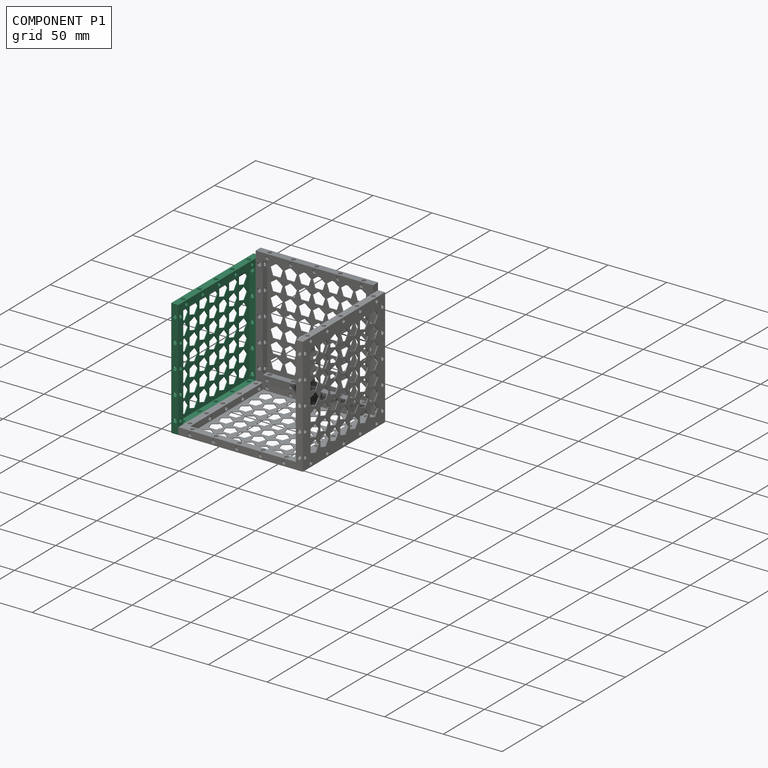
[diagram: component P1 — assembled]
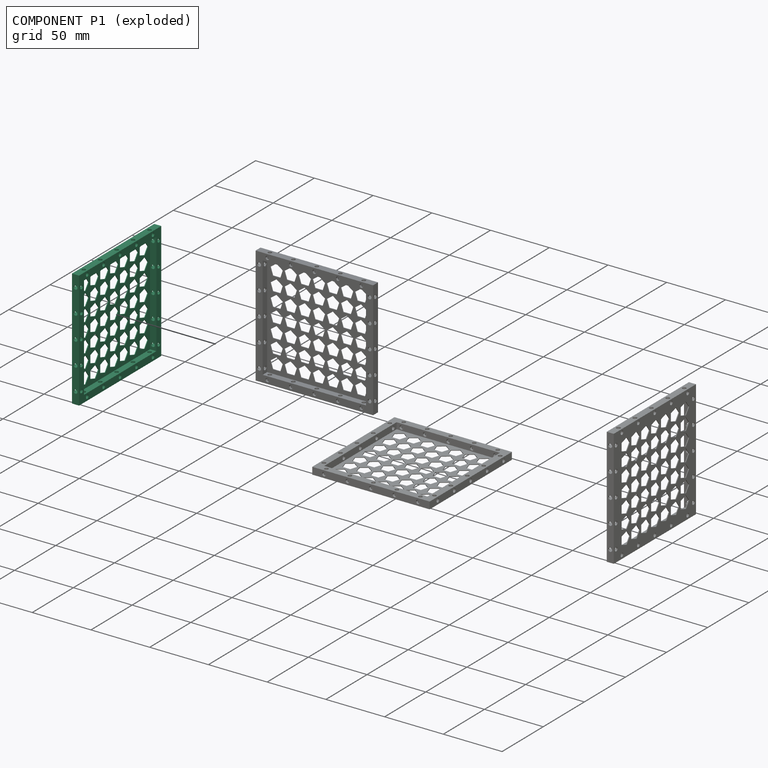
[diagram: component P1 — exploded]
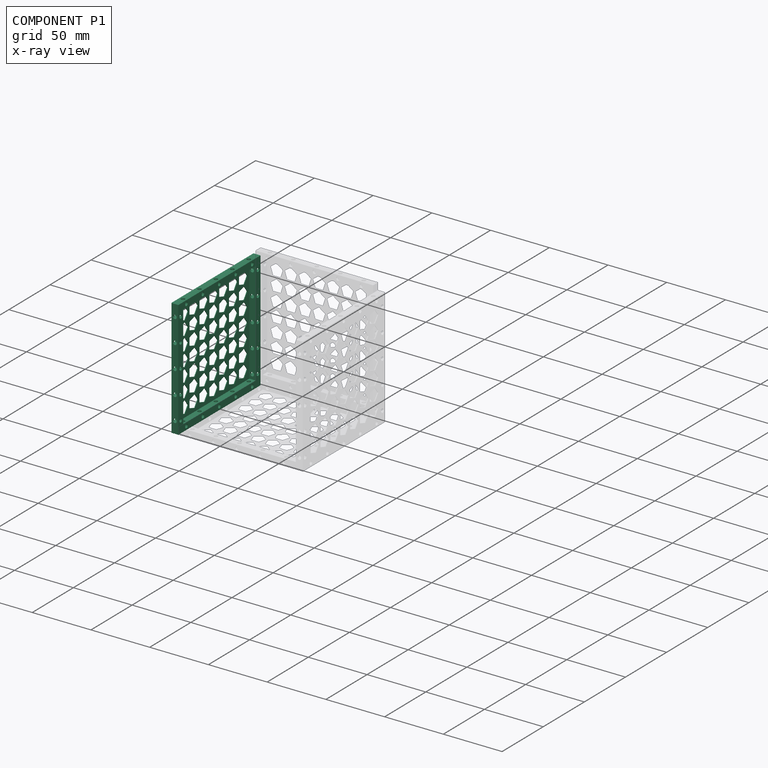
[diagram: component P1 — x-ray view]
COMPONENT P1 — same part as P0 (CADFS 00956520); its construction recipe is shown at P0.
Held by: FASTENED mate "Fastened 2" to P2.
PROVENANCE & LICENSES
Assembly (occurrences, transforms, mates, per-part STEP geometry): AutoMate dataset, Zenodo record 7776208, CC0.
Construction recipes: CADFS (HuggingFace VladPyatov/CADFS, CC-BY-4.0, layered over the ABC dataset), FeatureScript reconstruction programs keyed by ABC model id.
Join: ABC meta listings map ABC model id -> Onshape documentId; within a shared document, parts are matched by geometric signature (bounding-box dims + volume at 0.1% relative tolerance, exact B-rep face/solid counts).
Verification: 4 of this assembly's 4 components carry a recipe attachment, and every attachment is mesh-verified: the CADFS STEP and the AutoMate member STEP were compared as meshes in their shared local frame (symmetric sampled-point-to-mesh distance); worst across the 4 attachments: below the mesh-comparison resolution (tessellation chordal tolerance ~0.212 mm) on a 142 mm part.
Renders: orthographic iso camera (az 35 / el 25); the floor grid conveys scale (grid pitch printed in each image; no ruler). In the exploded view each component is displaced by its stored offset vector: the offsets alone carry the explosion direction (mate normal/axis signs are not orientation cues and do not encode it), and separation distances are assigned per mate-chain, not proportionally to assembly-order depth.
